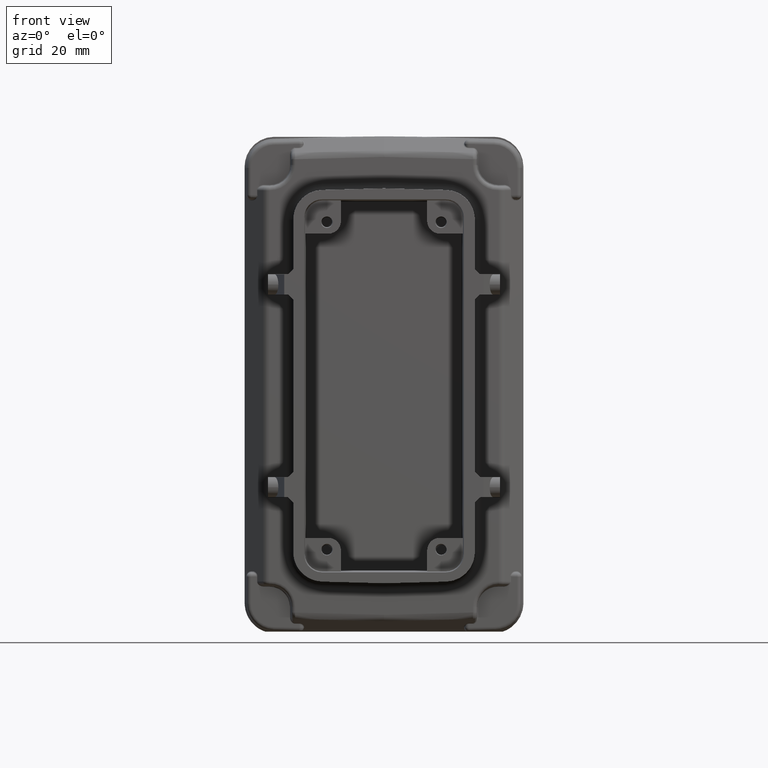
[diagram: clean part render]
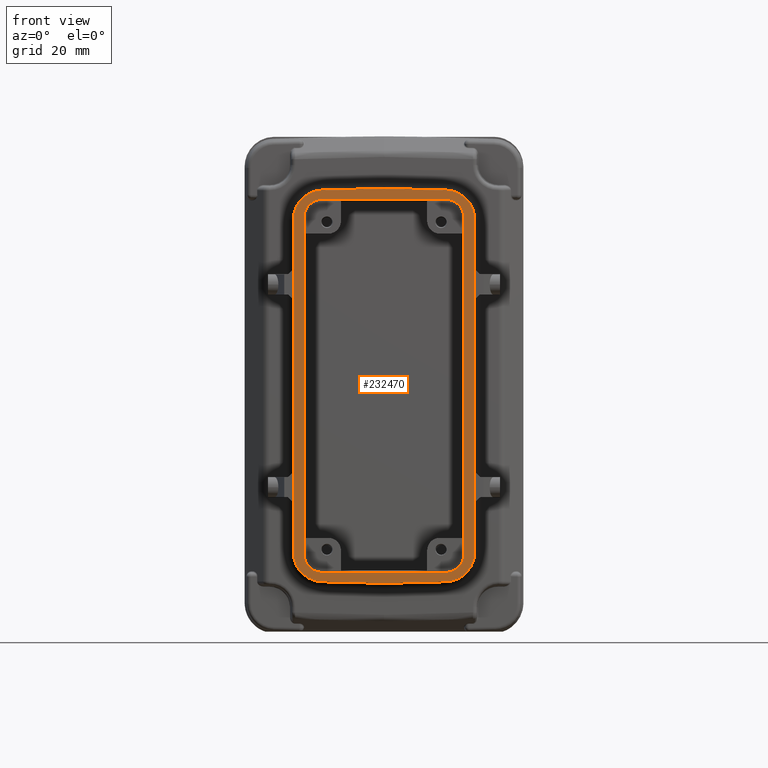
[diagram: same view with one face highlighted and labeled with its STEP entity id]
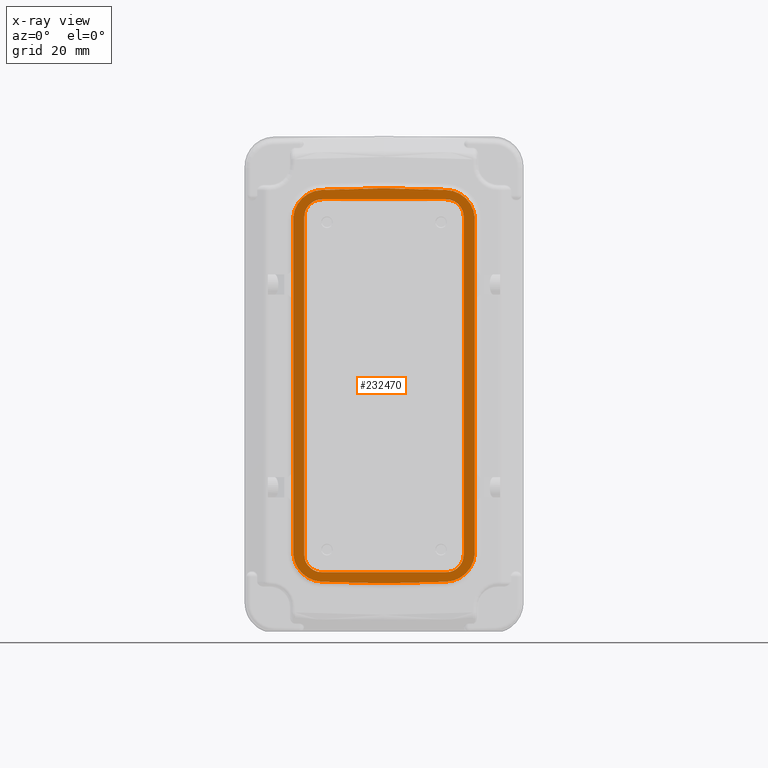
[diagram: x-ray of the same camera — body ghosted, the highlighted face saturated]
A machine part, front view. The second image highlights one B-rep face of the part: STEP entity #232470.
The next image is the same camera in x-ray: the body ghosted, the highlighted face saturated — about 0% of this face is hidden behind the body in this view.
In plain terms, the highlighted planar face has unit normal (0, -1, 0).
Its self-contained STEP definition (entity closure, byte-faithful):
#110250=CARTESIAN_POINT('',(61.3036735031013,19.780754524589,
-63.5682334685841));
#110260=VERTEX_POINT('',#110250);
#110310=CARTESIAN_POINT('',(61.1204348649462,19.780754524589,
-56.5706321937552));
#110320=DIRECTION('',(0.,1.,0.));
#110330=DIRECTION('',(1.,-0.,0.));
#110340=AXIS2_PLACEMENT_3D('',#110310,#110320,#110330);
#110350=CIRCLE('',#110340,6.99999999999996);
#110360=CARTESIAN_POINT('',(68.1097475108448,19.7807545245883,
-56.9572958031297));
#110370=VERTEX_POINT('',#110360);
#110380=EDGE_CURVE('',#110370,#110260,#110350,.T.);
#113020=CARTESIAN_POINT('',(0.,19.780754524589,-63.9419195492283));
#113030=DIRECTION('',(-1.,-0.,-0.));
#113040=VECTOR('',#113030,1.);
#113050=LINE('',#113020,#113040);
#113060=CARTESIAN_POINT('',(47.0331778225539,19.780754524589,
-63.9419195492284));
#113070=VERTEX_POINT('',#113060);
#113080=CARTESIAN_POINT('',(46.2122392391191,19.780754524589,
-63.9419195492284));
#113090=VERTEX_POINT('',#113080);
#113100=EDGE_CURVE('',#113070,#113090,#113050,.T.);
#116990=CARTESIAN_POINT('',(65.5085327492916,19.780754524589,
-57.1416259170758));
#117000=VERTEX_POINT('',#116990);
#117030=CARTESIAN_POINT('',(65.5085327492916,19.780754524589,
-57.1416259170758));
#117040=CARTESIAN_POINT('',(65.5085327492916,19.780754524589,
-57.2103441698574));
#117050=CARTESIAN_POINT('',(65.5068462848058,19.780754524589,
-57.2790615650155));
#117060=CARTESIAN_POINT('',(65.5001044758707,19.780754524589,
-57.4163296577894));
#117070=CARTESIAN_POINT('',(65.4950491429893,19.780754524589,
-57.4848801198147));
#117080=CARTESIAN_POINT('',(65.4815817576604,19.780754524589,
-57.6216492936064));
#117090=CARTESIAN_POINT('',(65.4731697283252,19.780754524589,
-57.6898677706208));
#117100=CARTESIAN_POINT('',(65.4530091926015,19.780754524589,
-57.8258087204412));
#117110=CARTESIAN_POINT('',(65.441260720816,19.780754524589,
-57.8935309599011));
#117120=CARTESIAN_POINT('',(65.4144555760805,19.780754524589,
-58.0283163749166));
#117130=CARTESIAN_POINT('',(65.3993989491429,19.780754524589,
-58.0953793190908));
#117140=CARTESIAN_POINT('',(65.366013735288,19.780754524589,
-58.2286846706942));
#117150=CARTESIAN_POINT('',(65.3476852056833,19.780754524589,
-58.2949268492652));
#117160=CARTESIAN_POINT('',(65.3078003057159,19.780754524589,
-58.4264311724594));
#117170=CARTESIAN_POINT('',(65.286244003829,19.780754524589,
-58.491693091302));
#117180=CARTESIAN_POINT('',(65.2399554503283,19.780754524589,
-58.6210797575036));
#117190=CARTESIAN_POINT('',(65.2152232781893,19.780754524589,
-58.6852042827061));
#117200=CARTESIAN_POINT('',(65.1626425220825,19.780754524589,
-58.8121617621115));
#117210=CARTESIAN_POINT('',(65.1347940283999,19.780754524589,
-58.8749944983133));
#117220=CARTESIAN_POINT('',(65.0760476706215,19.780754524589,
-58.9992171099699));
#117230=CARTESIAN_POINT('',(65.0451499074043,19.780754524589,
-59.0606067721063));
#117240=CARTESIAN_POINT('',(64.9803793940734,19.780754524589,
-59.1817954199162));
#117250=CARTESIAN_POINT('',(64.9465067551875,19.780754524589,
-59.2415941974734));
#117260=CARTESIAN_POINT('',(64.875868037038,19.780754524589,
-59.3594570903479));
#117270=CARTESIAN_POINT('',(64.8391020790842,19.780754524589,
-59.4175210032533));
#117280=CARTESIAN_POINT('',(64.7627652359758,19.780754524589,
-59.5317743576692));
#117290=CARTESIAN_POINT('',(64.7231944819229,19.780754524589,
-59.5879636029576));
#117300=CARTESIAN_POINT('',(64.6413433133391,19.780754524589,
-59.6983323262241));
#117310=CARTESIAN_POINT('',(64.5990630393834,19.780754524589,
-59.7525116146479));
#117320=CARTESIAN_POINT('',(64.5118946218817,19.780754524589,
-59.8587299672718));
#117330=CARTESIAN_POINT('',(64.4670066280463,19.780754524589,
-59.9107688490423));
#117340=CARTESIAN_POINT('',(64.3747308407528,19.780754524589,
-60.012581084554));
#117350=CARTESIAN_POINT('',(64.3273432057793,19.780754524589,
-60.0623542634312));
#117360=CARTESIAN_POINT('',(64.2301822250527,19.780754524589,
-60.1595152441578));
#117370=CARTESIAN_POINT('',(64.1804090461755,19.780754524589,
-60.2069028791313));
#117380=CARTESIAN_POINT('',(64.0785968106638,19.780754524589,
-60.2991786664248));
#117390=CARTESIAN_POINT('',(64.0265579288933,19.780754524589,
-60.3440666602602));
#117400=CARTESIAN_POINT('',(63.9203395762693,19.780754524589,
-60.431235077762));
#117410=CARTESIAN_POINT('',(63.8661602878456,19.780754524589,
-60.4735153517176));
#117420=CARTESIAN_POINT('',(63.7557915645791,19.780754524589,
-60.5553665203015));
#117430=CARTESIAN_POINT('',(63.6996023192907,19.780754524589,
-60.5949372743543));
#117440=CARTESIAN_POINT('',(63.5853489648748,19.780754524589,
-60.6712741174627));
#117450=CARTESIAN_POINT('',(63.5272850519694,19.780754524589,
-60.7080400754165));
#117460=CARTESIAN_POINT('',(63.4094221590949,19.780754524589,
-60.778678793566));
#117470=CARTESIAN_POINT('',(63.3496233815376,19.780754524589,
-60.8125514324519));
#117480=CARTESIAN_POINT('',(63.2284347337259,19.780754524589,
-60.8773219457838));
#117490=CARTESIAN_POINT('',(63.1670450715895,19.780754524589,
-60.9082197090009));
#117500=CARTESIAN_POINT('',(63.0428224599348,19.780754524589,
-60.9669660667784));
#117510=CARTESIAN_POINT('',(62.979989723733,19.780754524589,
-60.994814560461));
#117520=CARTESIAN_POINT('',(62.85303224433,19.780754524589,
-61.0473953165668));
#117530=CARTESIAN_POINT('',(62.7889077191276,19.780754524589,
-61.0721274887059));
#117540=CARTESIAN_POINT('',(62.6595210529208,19.780754524589,
-61.1184160422084));
#117550=CARTESIAN_POINT('',(62.5942591340782,19.780754524589,
-61.1399723440952));
#117560=CARTESIAN_POINT('',(62.4627548108857,19.780754524589,
-61.1798572440621));
#117570=CARTESIAN_POINT('',(62.3965126323147,19.780754524589,
-61.1981857736667));
#117580=CARTESIAN_POINT('',(62.2632072807103,19.780754524589,
-61.2315709875219));
#117590=CARTESIAN_POINT('',(62.196144336536,19.780754524589,
-61.2466276144594));
#117600=CARTESIAN_POINT('',(62.0613589215238,19.780754524589,
-61.2734327591942));
#117610=CARTESIAN_POINT('',(61.9936366820639,19.780754524589,
-61.2851812309798));
#117620=CARTESIAN_POINT('',(61.8576957322423,19.780754524589,
-61.3053417667037));
#117630=CARTESIAN_POINT('',(61.7894772552278,19.780754524589,
-61.3137537960388));
#117640=CARTESIAN_POINT('',(61.6527080814374,19.780754524589,
-61.3272211813677));
#117650=CARTESIAN_POINT('',(61.5841576194122,19.780754524589,
-61.3322765142491));
#117660=CARTESIAN_POINT('',(61.446889526637,19.780754524589,
-61.3390183231842));
#117670=CARTESIAN_POINT('',(61.378172131479,19.780754524589,
-61.3407047876701));
#117680=CARTESIAN_POINT('',(61.3094538786973,19.780754524589,
-61.3407047876701));
#117690=B_SPLINE_CURVE_WITH_KNOTS('',3,(#117030,#117040,#117050,#117060,
#117070,#117080,#117090,#117100,#117110,#117120,#117130,#117140,#117150,
#117160,#117170,#117180,#117190,#117200,#117210,#117220,#117230,#117240,
#117250,#117260,#117270,#117280,#117290,#117300,#117310,#117320,#117330,
#117340,#117350,#117360,#117370,#117380,#117390,#117400,#117410,#117420,
#117430,#117440,#117450,#117460,#117470,#117480,#117490,#117500,#117510,
#117520,#117530,#117540,#117550,#117560,#117570,#117580,#117590,#117600,
#117610,#117620,#117630,#117640,#117650,#117660,#117670,#117680),
.UNSPECIFIED.,.F.,.F.,(4,2,2,2,2,2,2,2,2,2,2,2,2,2,2,2,2,2,2,2,2,2,2,2,2
,2,2,2,2,2,2,2,4),(0.,0.206173115542941,0.412341820345254,
0.618506178290055,0.824666295105034,1.03082231734725,1.2369744309946,
1.44312285965746,1.64926786242773,1.85540973138577,2.06154878878939,
2.26768538397176,2.47381988997822,2.67995269997444,2.88608422346027,
3.09221488232627,3.29834510679037,3.50447533125448,3.71060599012046,
3.9167375136063,4.12287032360251,4.32900482960898,4.53514142479134,
4.74128048219496,4.94742235115299,5.15356735392326,5.35971578258612,
5.56586789623347,5.77202391847568,5.97818403529066,6.18434839323545,
6.39051709803777,6.59669021358072),.UNSPECIFIED.);
#117700=CARTESIAN_POINT('',(61.3094538786973,19.780754524589,
-61.3407047876701));
#117710=VERTEX_POINT('',#117700);
#117720=EDGE_CURVE('',#117000,#117710,#117690,.T.);
#133710=CARTESIAN_POINT('',(31.9417440336335,19.780754524589,
-63.568233481024));
#133720=VERTEX_POINT('',#133710);
#133770=CARTESIAN_POINT('',(0.,19.780754524589,-62.7318094769762));
#133780=DIRECTION('',(0.999657324975557,0.,-0.0261769483078761));
#133790=VECTOR('',#133780,1.);
#133800=LINE('',#133770,#133790);
#133810=EDGE_CURVE('',#133720,#113090,#133800,.T.);
#142160=CARTESIAN_POINT('',(31.9359631829766,19.780754524589,
-61.3407047876701));
#142170=CARTESIAN_POINT('',(31.8672449301926,19.780754524589,
-61.3407047876701));
#142180=CARTESIAN_POINT('',(31.7985275350346,19.780754524589,
-61.3390183231841));
#142190=CARTESIAN_POINT('',(31.6612594422652,19.780754524589,
-61.3322765142493));
#142200=CARTESIAN_POINT('',(31.5927089802399,19.780754524589,
-61.327221181368));
#142210=CARTESIAN_POINT('',(31.455939806446,19.780754524589,
-61.3137537960388));
#142220=CARTESIAN_POINT('',(31.3877213294316,19.780754524589,
-61.3053417667037));
#142230=CARTESIAN_POINT('',(31.2517803796133,19.780754524589,
-61.2851812309803));
#142240=CARTESIAN_POINT('',(31.1840581401534,19.780754524589,
-61.2734327591949));
#142250=CARTESIAN_POINT('',(31.0492727251379,19.780754524589,
-61.2466276144594));
#142260=CARTESIAN_POINT('',(30.9822097809635,19.780754524589,
-61.2315709875219));
#142270=CARTESIAN_POINT('',(30.8489044293582,19.780754524589,
-61.1981857736665));
#142280=CARTESIAN_POINT('',(30.7826622507871,19.780754524589,
-61.1798572440618));
#142290=CARTESIAN_POINT('',(30.651157927593,19.780754524589,
-61.1399723440944));
#142300=CARTESIAN_POINT('',(30.5858960087504,19.780754524589,
-61.1184160422075));
#142310=CARTESIAN_POINT('',(30.4565093425463,19.780754524589,
-61.0721274887059));
#142320=CARTESIAN_POINT('',(30.3923848173439,19.780754524589,
-61.0473953165668));
#142330=CARTESIAN_POINT('',(30.2654273379409,19.780754524589,
-60.994814560461));
#142340=CARTESIAN_POINT('',(30.202594601739,19.780754524589,
-60.9669660667784));
#142350=CARTESIAN_POINT('',(30.0783719900824,19.780754524589,
-60.908219709));
#142360=CARTESIAN_POINT('',(30.0169823279461,19.780754524589,
-60.8773219457829));
#142370=CARTESIAN_POINT('',(29.8957936801378,19.780754524589,
-60.8125514324528));
#142380=CARTESIAN_POINT('',(29.8359949025805,19.780754524589,
-60.7786787935669));
#142390=CARTESIAN_POINT('',(29.7181320097044,19.780754524589,
-60.7080400754165));
#142400=CARTESIAN_POINT('',(29.6600680967991,19.780754524589,
-60.6712741174628));
#142410=CARTESIAN_POINT('',(29.5458147423842,19.780754524589,
-60.594937274355));
#142420=CARTESIAN_POINT('',(29.4896254970957,19.780754524589,
-60.5553665203022));
#142430=CARTESIAN_POINT('',(29.3792567738282,19.780754524589,
-60.4735153517176));
#142440=CARTESIAN_POINT('',(29.3250774854045,19.780754524589,
-60.431235077762));
#142450=CARTESIAN_POINT('',(29.2188591327806,19.780754524589,
-60.3440666602603));
#142460=CARTESIAN_POINT('',(29.1668202510101,19.780754524589,
-60.2991786664249));
#142470=CARTESIAN_POINT('',(29.0650080154983,19.780754524589,
-60.2069028791313));
#142480=CARTESIAN_POINT('',(29.0152348366211,19.780754524589,
-60.1595152441579));
#142490=CARTESIAN_POINT('',(28.9180738558945,19.780754524589,
-60.0623542634313));
#142500=CARTESIAN_POINT('',(28.8706862209211,19.780754524589,
-60.0125810845541));
#142510=CARTESIAN_POINT('',(28.7784104336275,19.780754524589,
-59.9107688490423));
#142520=CARTESIAN_POINT('',(28.7335224397922,19.780754524589,
-59.8587299672718));
#142530=CARTESIAN_POINT('',(28.6463540222904,19.780754524589,
-59.7525116146479));
#142540=CARTESIAN_POINT('',(28.6040737483347,19.780754524589,
-59.6983323262241));
#142550=CARTESIAN_POINT('',(28.5222225797502,19.7807545245889,
-59.5879636029566));
#142560=CARTESIAN_POINT('',(28.4826518256974,19.7807545245889,
-59.5317743576683));
#142570=CARTESIAN_POINT('',(28.4063149825904,19.7807545245889,
-59.4175210032545));
#142580=CARTESIAN_POINT('',(28.3695490246366,19.7807545245889,
-59.3594570903493));
#142590=CARTESIAN_POINT('',(28.2989103064864,19.7807545245889,
-59.2415941974734));
#142600=CARTESIAN_POINT('',(28.2650376676004,19.7807545245889,
-59.1817954199162));
#142610=CARTESIAN_POINT('',(28.2002671542695,19.7807545245889,
-59.0606067721063));
#142620=CARTESIAN_POINT('',(28.1693693910524,19.7807545245889,
-58.99921710997));
#142630=CARTESIAN_POINT('',(28.1106230332746,19.7807545245889,
-58.8749944983147));
#142640=CARTESIAN_POINT('',(28.082774539592,19.7807545245889,
-58.812161762113));
#142650=CARTESIAN_POINT('',(28.0301937834853,19.7807545245889,
-58.6852042827077));
#142660=CARTESIAN_POINT('',(28.0054616113462,19.7807545245889,
-58.6210797575052));
#142670=CARTESIAN_POINT('',(27.9591730578449,19.7807545245889,
-58.491693091302));
#142680=CARTESIAN_POINT('',(27.937616755958,19.7807545245889,
-58.4264311724594));
#142690=CARTESIAN_POINT('',(27.8977318559897,19.7807545245888,
-58.2949268492623));
#142700=CARTESIAN_POINT('',(27.8794033263852,19.7807545245888,
-58.2286846706913));
#142710=CARTESIAN_POINT('',(27.8460181125305,19.7807545245888,
-58.0953793190888));
#142720=CARTESIAN_POINT('',(27.830961485593,19.7807545245888,
-58.0283163749146));
#142730=CARTESIAN_POINT('',(27.8041563408575,19.7807545245888,
-57.8935309598991));
#142740=CARTESIAN_POINT('',(27.7924078690721,19.7807545245888,
-57.825808720439));
#142750=CARTESIAN_POINT('',(27.7722473333482,19.7807545245888,
-57.6898677706173));
#142760=CARTESIAN_POINT('',(27.7638353040132,19.7807545245888,
-57.621649293603));
#142770=CARTESIAN_POINT('',(27.7503679186846,19.7807545245888,
-57.4848801198147));
#142780=CARTESIAN_POINT('',(27.7453125858032,19.7807545245888,
-57.4163296577894));
#142790=CARTESIAN_POINT('',(27.7385707768683,19.7807545245888,
-57.2790615650179));
#142800=CARTESIAN_POINT('',(27.7368843123823,19.7807545245888,
-57.2103441698598));
#142810=CARTESIAN_POINT('',(27.7368843123823,19.7807545245888,
-57.1416259170758));
#142820=B_SPLINE_CURVE_WITH_KNOTS('',3,(#142160,#142170,#142180,#142190,
#142200,#142210,#142220,#142230,#142240,#142250,#142260,#142270,#142280,
#142290,#142300,#142310,#142320,#142330,#142340,#142350,#142360,#142370,
#142380,#142390,#142400,#142410,#142420,#142430,#142440,#142450,#142460,
#142470,#142480,#142490,#142500,#142510,#142520,#142530,#142540,#142550,
#142560,#142570,#142580,#142590,#142600,#142610,#142620,#142630,#142640,
#142650,#142660,#142670,#142680,#142690,#142700,#142710,#142720,#142730,
#142740,#142750,#142760,#142770,#142780,#142790,#142800,#142810),
.UNSPECIFIED.,.F.,.F.,(4,2,2,2,2,2,2,2,2,2,2,2,2,2,2,2,2,2,2,2,2,2,2,2,2
,2,2,2,2,2,2,2,4),(0.,0.206173115542941,0.412341820345264,
0.618506178290068,0.824666295105047,1.03082231734727,1.23697443099461,
1.44312285965748,1.64926786242775,1.85540973138579,2.06154878878941,
2.26768538397177,2.47381988997824,2.67995269997445,2.8860842234603,
3.09221488232628,3.29834510679039,3.50447533125449,3.71060599012048,
3.91673751360631,4.12287032360253,4.329004829609,4.53514142479136,
4.74128048219498,4.94742235115302,5.15356735392329,5.35971578258615,
5.5658678962335,5.77202391847572,5.9781840352907,6.18434839323551,
6.39051709803782,6.59669021358077),.UNSPECIFIED.);
#142830=CARTESIAN_POINT('',(31.9359631829766,19.780754524589,
-61.3407047876702));
#142840=VERTEX_POINT('',#142830);
#142850=CARTESIAN_POINT('',(27.7368843123823,19.7807545245888,
-57.1416259170758));
#142860=VERTEX_POINT('',#142850);
#142870=EDGE_CURVE('',#142840,#142860,#142820,.T.);
#151680=CARTESIAN_POINT('',(0.,19.780754524589,-65.1735266548395));
#151690=DIRECTION('',(0.999657324975557,0.,0.0261769483078757));
#151700=VECTOR('',#151690,1.);
#151710=LINE('',#151680,#151700);
#151720=EDGE_CURVE('',#113070,#110260,#151710,.T.);
#168620=CARTESIAN_POINT('',(0.,19.780754524589,-61.3407047876703));
#168630=DIRECTION('',(1.,-0.,-0.));
#168640=VECTOR('',#168630,1.);
#168650=LINE('',#168620,#168640);
#168660=EDGE_CURVE('',#142840,#117710,#168650,.T.);
#208170=CARTESIAN_POINT('',(25.1356695508344,19.780754524589,
-56.9572872168403));
#208180=VERTEX_POINT('',#208170);
#208210=CARTESIAN_POINT('',(32.1249826717887,19.780754524589,
-56.5706322061951));
#208220=DIRECTION('',(0.,1.,0.));
#208230=DIRECTION('',(1.,-0.,0.));
#208240=AXIS2_PLACEMENT_3D('',#208210,#208220,#208230);
#208250=CIRCLE('',#208240,7.00000000000001);
#208260=EDGE_CURVE('',#133720,#208180,#208250,.T.);
#215000=CARTESIAN_POINT('',(65.5085327490753,19.7807545345238,
22.7354494636046));
#215010=VERTEX_POINT('',#215000);
#215040=CARTESIAN_POINT('',(65.5085327492857,19.780754524589,0.));
#215050=DIRECTION('',(-0.,0.,-1.));
#215060=VECTOR('',#215050,1.);
#215070=LINE('',#215040,#215060);
#215080=EDGE_CURVE('',#215010,#117000,#215070,.T.);
#217550=CARTESIAN_POINT('',(68.1097470357802,19.7807545245814,
22.551119350681));
#217560=VERTEX_POINT('',#217550);
#217890=CARTESIAN_POINT('',(68.1097475108297,19.780754524589,0.));
#217900=DIRECTION('',(-0.,0.,1.));
#217910=VECTOR('',#217900,1.);
#217920=LINE('',#217890,#217910);
#217930=EDGE_CURVE('',#110370,#217560,#217920,.T.);
#230240=CARTESIAN_POINT('',(24.0613144518342,19.780754524589,
-66.9411142653572));
#230250=DIRECTION('',(0.,-1.,0.));
#230260=DIRECTION('',(-1.,-0.,0.));
#230270=AXIS2_PLACEMENT_3D('',#230240,#230250,#230260);
#230280=PLANE('',#230270);
#230290=ORIENTED_EDGE('',*,*,#110380,.F.);
#230300=ORIENTED_EDGE('',*,*,#151720,.T.);
#230310=ORIENTED_EDGE('',*,*,#113100,.F.);
#230320=ORIENTED_EDGE('',*,*,#133810,.T.);
#230330=ORIENTED_EDGE('',*,*,#208260,.F.);
#230340=CARTESIAN_POINT('',(25.1356695508804,19.780754524589,0.));
#230350=DIRECTION('',(0.,-0.,1.));
#230360=VECTOR('',#230350,1.);
#230370=LINE('',#230340,#230360);
#230380=CARTESIAN_POINT('',(25.1356690758033,19.7807545245814,
22.5511107642502));
#230390=VERTEX_POINT('',#230380);
#230400=EDGE_CURVE('',#208180,#230390,#230370,.T.);
#230410=ORIENTED_EDGE('',*,*,#230400,.F.);
#230420=CARTESIAN_POINT('',(32.1249821967203,19.7807545245814,
22.1644557529319));
#230430=DIRECTION('',(0.,-1.,0.));
#230440=DIRECTION('',(-1.,0.,0.));
#230450=AXIS2_PLACEMENT_3D('',#230420,#230430,#230440);
#230460=CIRCLE('',#230450,7.00000000000002);
#230470=CARTESIAN_POINT('',(31.9417435585652,19.7807545245814,
29.1620570277608));
#230480=VERTEX_POINT('',#230470);
#230490=EDGE_CURVE('',#230480,#230390,#230460,.T.);
#230500=ORIENTED_EDGE('',*,*,#230490,.T.);
#230510=CARTESIAN_POINT('',(-4.75063188787317E-7,19.7807545245814,
28.3256330237131));
#230520=DIRECTION('',(-0.999657324975557,0.,-0.0261769483078759));
#230530=VECTOR('',#230520,1.);
#230540=LINE('',#230510,#230530);
#230550=CARTESIAN_POINT('',(46.2122387624066,19.7807545245814,
29.5357430959221));
#230560=VERTEX_POINT('',#230550);
#230570=EDGE_CURVE('',#230560,#230480,#230540,.T.);
#230580=ORIENTED_EDGE('',*,*,#230570,.T.);
#230590=CARTESIAN_POINT('',(-4.75063188787317E-7,19.7807545245814,
29.5357430959219));
#230600=DIRECTION('',(-1.,0.,0.));
#230610=VECTOR('',#230600,1.);
#230620=LINE('',#230590,#230610);
#230630=CARTESIAN_POINT('',(47.0331778241865,19.7807545245814,
29.5357430959221));
#230640=VERTEX_POINT('',#230630);
#230650=EDGE_CURVE('',#230640,#230560,#230620,.T.);
#230660=ORIENTED_EDGE('',*,*,#230650,.T.);
#230670=CARTESIAN_POINT('',(-4.75063188787317E-7,19.7807545245814,
30.7673502140156));
#230680=DIRECTION('',(-0.999657324975557,0.,0.0261769483078683));
#230690=VECTOR('',#230680,1.);
#230700=LINE('',#230670,#230690);
#230710=CARTESIAN_POINT('',(61.3036730280326,19.7807545245814,
29.1620570277608));
#230720=VERTEX_POINT('',#230710);
#230730=EDGE_CURVE('',#230720,#230640,#230700,.T.);
#230740=ORIENTED_EDGE('',*,*,#230730,.T.);
#230750=CARTESIAN_POINT('',(61.1204343898775,19.7807545245814,
22.1644557529319));
#230760=DIRECTION('',(0.,1.,0.));
#230770=DIRECTION('',(1.,-0.,0.));
#230780=AXIS2_PLACEMENT_3D('',#230750,#230760,#230770);
#230790=CIRCLE('',#230780,6.99999999999993);
#230800=EDGE_CURVE('',#230720,#217560,#230790,.T.);
#230810=ORIENTED_EDGE('',*,*,#230800,.F.);
#230820=ORIENTED_EDGE('',*,*,#217930,.T.);
#230830=EDGE_LOOP('',(#230820,#230810,#230740,#230660,#230580,#230500,
#230410,#230330,#230320,#230310,#230300,#230290));
#230840=FACE_OUTER_BOUND('',#230830,.T.);
#230850=CARTESIAN_POINT('',(61.3094538786892,19.7807545245814,
26.9345283344072));
#230860=CARTESIAN_POINT('',(61.378172131473,19.7807545245814,
26.9345283344072));
#230870=CARTESIAN_POINT('',(61.4468895266333,19.7807545245814,
26.9328418699212));
#230880=CARTESIAN_POINT('',(61.5841576194115,19.7807545245814,
26.9261000609857));
#230890=CARTESIAN_POINT('',(61.652708081439,19.7807545245814,
26.921044728104));
#230900=CARTESIAN_POINT('',(61.7894772552336,19.7807545245814,
26.9075773427743));
#230910=CARTESIAN_POINT('',(61.8576957322503,19.7807545245815,
26.8991653134387));
#230920=CARTESIAN_POINT('',(61.9936366820771,19.7807545245817,
26.8790047777134));
#230930=CARTESIAN_POINT('',(62.0613589215392,19.7807545245819,
26.8672563059271));
#230940=CARTESIAN_POINT('',(62.1961443365555,19.7807545245826,
26.8404511611905));
#230950=CARTESIAN_POINT('',(62.2632072807318,19.7807545245833,
26.8253945342521));
#230960=CARTESIAN_POINT('',(62.3965126323381,19.7807545245854,
26.7920093203954));
#230970=CARTESIAN_POINT('',(62.4627548109111,19.7807545245871,
26.7736807907897));
#230980=CARTESIAN_POINT('',(62.5942591341092,19.7807545245919,
26.7337958908197));
#230990=CARTESIAN_POINT('',(62.6595210529535,19.7807545245954,
26.7122395889316));
#231000=CARTESIAN_POINT('',(62.7889077191612,19.780754524605,
26.6659510354271));
#231010=CARTESIAN_POINT('',(62.8530322443653,19.7807545246114,
26.6412188632865));
#231020=CARTESIAN_POINT('',(62.9799897237737,19.7807545246285,
26.5886381071765));
#231030=CARTESIAN_POINT('',(63.0428224599769,19.7807545246396,
26.5607896134922));
#231040=CARTESIAN_POINT('',(63.1670450716341,19.7807545246677,
26.5020432557111));
#231050=CARTESIAN_POINT('',(63.2284347337717,19.7807545246852,
26.4711454924922));
#231060=CARTESIAN_POINT('',(63.3496233815847,19.7807545247283,
26.4063749791567));
#231070=CARTESIAN_POINT('',(63.4094221591428,19.7807545247545,
26.3725023402687));
#231080=CARTESIAN_POINT('',(63.527285052019,19.7807545248174,
26.3018636221147));
#231090=CARTESIAN_POINT('',(63.5853489649248,19.7807545248546,
26.2650976641587));
#231100=CARTESIAN_POINT('',(63.6996023193401,19.7807545249422,
26.1887608210464));
#231110=CARTESIAN_POINT('',(63.7557915646285,19.7807545249931,
26.1491900669912));
#231120=CARTESIAN_POINT('',(63.8661602878953,19.7807545251104,
26.0673388984019));
#231130=CARTESIAN_POINT('',(63.9203395763185,19.7807545251774,
26.0250586244437));
#231140=CARTESIAN_POINT('',(64.0265579289407,19.7807545253293,
25.937890206937));
#231150=CARTESIAN_POINT('',(64.0785968107101,19.7807545254147,
25.893002213099));
#231160=CARTESIAN_POINT('',(64.1804090462189,19.7807545256055,
25.8007264258001));
#231170=CARTESIAN_POINT('',(64.2301822250943,19.7807545257113,
25.753338790824));
#231180=CARTESIAN_POINT('',(64.3273432058166,19.7807545259444,
25.6561778100919));
#231190=CARTESIAN_POINT('',(64.3747308407877,19.7807545260721,
25.6064046312119));
#231200=CARTESIAN_POINT('',(64.4670066280756,19.7807545263498,
25.5045923956946));
#231210=CARTESIAN_POINT('',(64.5118946219079,19.7807545265001,
25.4525535139212));
#231220=CARTESIAN_POINT('',(64.5990630394026,19.780754526823,
25.3463351612915));
#231230=CARTESIAN_POINT('',(64.6413433133545,19.7807545269959,
25.2921558728648));
#231240=CARTESIAN_POINT('',(64.7231944819299,19.7807545273631,
25.1817871495924));
#231250=CARTESIAN_POINT('',(64.7627652359783,19.7807545275575,
25.125597904301));
#231260=CARTESIAN_POINT('',(64.8391020790771,19.7807545279658,
25.0113445498791));
#231270=CARTESIAN_POINT('',(64.8758680370257,19.7807545281796,
24.9532806369707));
#231280=CARTESIAN_POINT('',(64.9465067551651,19.7807545286239,
24.8354177440886));
#231290=CARTESIAN_POINT('',(64.9803793940453,19.7807545288539,
24.7756189665284));
#231300=CARTESIAN_POINT('',(65.0451499073643,19.7807545293265,
24.6544303187122));
#231310=CARTESIAN_POINT('',(65.0760476705752,19.7807545295684,
24.5930406565728));
#231320=CARTESIAN_POINT('',(65.1347940283398,19.7807545300595,
24.4688180449121));
#231330=CARTESIAN_POINT('',(65.1626425220158,19.7807545303078,
24.4059853087073));
#231340=CARTESIAN_POINT('',(65.2152232781091,19.7807545308056,
24.2790278292958));
#231350=CARTESIAN_POINT('',(65.2399554502413,19.7807545310539,
24.2149033040904));
#231360=CARTESIAN_POINT('',(65.2862440037281,19.7807545315445,
24.0855166378829));
#231370=CARTESIAN_POINT('',(65.3078003056081,19.7807545317855,
24.0202547190374));
#231380=CARTESIAN_POINT('',(65.3476852055625,19.7807545322536,
23.8887503958346));
#231390=CARTESIAN_POINT('',(65.3660137351602,19.7807545324794,
23.8225082172607));
#231400=CARTESIAN_POINT('',(65.3993989490006,19.7807545329086,
23.6892028656557));
#231410=CARTESIAN_POINT('',(65.4144555759316,19.7807545331108,
23.6221399214787));
#231420=CARTESIAN_POINT('',(65.4412607206545,19.7807545334844,
23.4873545064568));
#231430=CARTESIAN_POINT('',(65.4530091924339,19.7807545336546,
23.4196322669941));
#231440=CARTESIAN_POINT('',(65.4731697281459,19.7807545339559,
23.2836913171674));
#231450=CARTESIAN_POINT('',(65.4815817574754,19.7807545340861,
23.2154728401503));
#231460=CARTESIAN_POINT('',(65.4950491427941,19.7807545342997,
23.0787036663527));
#231470=CARTESIAN_POINT('',(65.5001044756706,19.7807545343825,
23.010153204325));
#231480=CARTESIAN_POINT('',(65.5068462845968,19.7807545344947,
22.8728851115488));
#231490=CARTESIAN_POINT('',(65.5085327490787,19.7807545345238,
22.8041677163883));
#231500=CARTESIAN_POINT('',(65.5085327490753,19.7807545345238,
22.7354494636046));
#231510=B_SPLINE_CURVE_WITH_KNOTS('',3,(#230850,#230860,#230870,#230880,
#230890,#230900,#230910,#230920,#230930,#230940,#230950,#230960,#230970,
#230980,#230990,#231000,#231010,#231020,#231030,#231040,#231050,#231060,
#231070,#231080,#231090,#231100,#231110,#231120,#231130,#231140,#231150,
#231160,#231170,#231180,#231190,#231200,#231210,#231220,#231230,#231240,
#231250,#231260,#231270,#231280,#231290,#231300,#231310,#231320,#231330,
#231340,#231350,#231360,#231370,#231380,#231390,#231400,#231410,#231420,
#231430,#231440,#231450,#231460,#231470,#231480,#231490,#231500),
.UNSPECIFIED.,.F.,.F.,(4,2,2,2,2,2,2,2,2,2,2,2,2,2,2,2,2,2,2,2,2,2,2,2,2
,2,2,2,2,2,2,2,4),(0.,0.206173115549446,0.412341820358281,
0.618506178309585,0.824666295131065,1.03082231737975,1.2369744310335,
1.44312285970266,1.64926786247906,1.85540973144298,2.06154878885211,
2.26768538403955,2.47381989005056,2.67995270005066,2.8860842235397,
3.09221488240814,3.29834510687394,3.50447533133903,3.71060599020538,
3.91673751369107,4.12287032368677,4.32900482969259,4.53514142487435,
4.74128048227767,4.94742235123592,5.15356735400709,5.35971578267173,
5.5658678963218,5.77202391856775,5.9781840353874,6.1843483933377,
6.39051709814613,6.59669021369551),.UNSPECIFIED.);
#231520=CARTESIAN_POINT('',(61.3094538786892,19.7807545245814,
26.9345283344072));
#231530=VERTEX_POINT('',#231520);
#231540=EDGE_CURVE('',#231530,#215010,#231510,.T.);
#231550=ORIENTED_EDGE('',*,*,#231540,.T.);
#231560=CARTESIAN_POINT('',(-4.75063188787317E-7,19.7807545245814,
26.9345283344071));
#231570=DIRECTION('',(1.,0.,0.));
#231580=VECTOR('',#231570,1.);
#231590=LINE('',#231560,#231580);
#231600=CARTESIAN_POINT('',(31.9359627079081,19.7807545245814,
26.934528334407));
#231610=VERTEX_POINT('',#231600);
#231620=EDGE_CURVE('',#231610,#231530,#231590,.T.);
#231630=ORIENTED_EDGE('',*,*,#231620,.T.);
#231640=CARTESIAN_POINT('',(27.7368838373138,19.7807545245813,
22.7354494638126));
#231650=CARTESIAN_POINT('',(27.7368838373138,19.7807545245813,
22.8041677165943));
#231660=CARTESIAN_POINT('',(27.7385703017997,19.7807545245813,
22.8728851117523));
#231670=CARTESIAN_POINT('',(27.7453121107346,19.7807545245813,
23.0101532045239));
#231680=CARTESIAN_POINT('',(27.7503674436159,19.7807545245813,
23.0787036665492));
#231690=CARTESIAN_POINT('',(27.7638348289451,19.7807545245813,
23.2154728403431));
#231700=CARTESIAN_POINT('',(27.7722468582803,19.7807545245813,
23.2836913173576));
#231710=CARTESIAN_POINT('',(27.7924073940041,19.7807545245813,
23.4196322671791));
#231720=CARTESIAN_POINT('',(27.8041558657897,19.7807545245813,
23.4873545066391));
#231730=CARTESIAN_POINT('',(27.8309610105245,19.7807545245813,
23.6221399216514));
#231740=CARTESIAN_POINT('',(27.846017637462,19.7807545245813,
23.6892028658256));
#231750=CARTESIAN_POINT('',(27.8794028513167,19.7807545245813,
23.8225082174281));
#231760=CARTESIAN_POINT('',(27.8977313809212,19.7807545245813,
23.8887503959991));
#231770=CARTESIAN_POINT('',(27.9376162808892,19.7807545245813,
24.0202547191952));
#231780=CARTESIAN_POINT('',(27.9591725827761,19.7807545245813,
24.0855166380379));
#231790=CARTESIAN_POINT('',(28.0054611362771,19.7807545245814,
24.2149033042404));
#231800=CARTESIAN_POINT('',(28.0301933084161,19.7807545245814,
24.2790278294429));
#231810=CARTESIAN_POINT('',(28.0827740645229,19.7807545245814,
24.4059853088483));
#231820=CARTESIAN_POINT('',(28.1106225582055,19.7807545245814,
24.4688180450501));
#231830=CARTESIAN_POINT('',(28.169368915983,19.7807545245814,
24.5930406567049));
#231840=CARTESIAN_POINT('',(28.2002666792,19.7807545245814,
24.6544303188412));
#231850=CARTESIAN_POINT('',(28.2650371925317,19.7807545245814,
24.7756189666524));
#231860=CARTESIAN_POINT('',(28.2989098314176,19.7807545245814,
24.8354177442097));
#231870=CARTESIAN_POINT('',(28.3695485495673,19.7807545245814,
24.9532806370847));
#231880=CARTESIAN_POINT('',(28.4063145075211,19.7807545245814,
25.0113445499901));
#231890=CARTESIAN_POINT('',(28.4826513506289,19.7807545245814,
25.125597904405));
#231900=CARTESIAN_POINT('',(28.5222221046817,19.7807545245814,
25.1817871496934));
#231910=CARTESIAN_POINT('',(28.6040732732663,19.7807545245814,
25.2921558729609));
#231920=CARTESIAN_POINT('',(28.6463535472219,19.7807545245814,
25.3463351613847));
#231930=CARTESIAN_POINT('',(28.7335219647237,19.7807545245814,
25.4525535140086));
#231940=CARTESIAN_POINT('',(28.778409958559,19.7807545245814,
25.5045923957791));
#231950=CARTESIAN_POINT('',(28.8706857458525,19.7807545245814,
25.6064046312908));
#231960=CARTESIAN_POINT('',(28.9180733808261,19.7807545245814,
25.6561778101681));
#231970=CARTESIAN_POINT('',(29.0152343615526,19.7807545245814,
25.7533387908947));
#231980=CARTESIAN_POINT('',(29.0650075404298,19.7807545245814,
25.8007264258682));
#231990=CARTESIAN_POINT('',(29.1668197759416,19.7807545245814,
25.8930022131617));
#232000=CARTESIAN_POINT('',(29.2188586577121,19.7807545245814,
25.9378902069971));
#232010=CARTESIAN_POINT('',(29.325077010336,19.7807545245814,
26.0250586244988));
#232020=CARTESIAN_POINT('',(29.3792562987598,19.7807545245814,
26.0673388984545));
#232030=CARTESIAN_POINT('',(29.4896250220263,19.7807545245814,
26.1491900670383));
#232040=CARTESIAN_POINT('',(29.5458142673147,19.7807545245814,
26.1887608210912));
#232050=CARTESIAN_POINT('',(29.6600676217293,19.7807545245814,
26.2650976641988));
#232060=CARTESIAN_POINT('',(29.7181315346347,19.7807545245814,
26.3018636221526));
#232070=CARTESIAN_POINT('',(29.8359944275105,19.7807545245814,
26.3725023403029));
#232080=CARTESIAN_POINT('',(29.8957932050677,19.7807545245814,
26.4063749791888));
#232090=CARTESIAN_POINT('',(30.0169818528795,19.7807545245814,
26.4711454925207));
#232100=CARTESIAN_POINT('',(30.0783715150158,19.7807545245814,
26.5020432557378));
#232110=CARTESIAN_POINT('',(30.2025941266706,19.7807545245814,
26.5607896135153));
#232120=CARTESIAN_POINT('',(30.2654268628724,19.7807545245814,
26.5886381071979));
#232130=CARTESIAN_POINT('',(30.3923843422778,19.7807545245814,
26.6412188633047));
#232140=CARTESIAN_POINT('',(30.4565088674803,19.7807545245814,
26.6659510354437));
#232150=CARTESIAN_POINT('',(30.5858955336846,19.7807545245814,
26.7122395889454));
#232160=CARTESIAN_POINT('',(30.6511574525272,19.7807545245814,
26.7337958908322));
#232170=CARTESIAN_POINT('',(30.7826617757216,19.7807545245814,
26.7736807907996));
#232180=CARTESIAN_POINT('',(30.8489039542926,19.7807545245814,
26.7920093204042));
#232190=CARTESIAN_POINT('',(30.982209305895,19.7807545245814,
26.8253945342589));
#232200=CARTESIAN_POINT('',(31.0492722500694,19.7807545245814,
26.8404511611963));
#232210=CARTESIAN_POINT('',(31.1840576650849,19.7807545245814,
26.8672563059319));
#232220=CARTESIAN_POINT('',(31.2517799045449,19.7807545245814,
26.8790047777173));
#232230=CARTESIAN_POINT('',(31.3877208543665,19.7807545245814,
26.8991653134411));
#232240=CARTESIAN_POINT('',(31.455939331381,19.7807545245814,
26.9075773427762));
#232250=CARTESIAN_POINT('',(31.5927085051714,19.7807545245814,
26.921044728105));
#232260=CARTESIAN_POINT('',(31.6612589671968,19.7807545245814,
26.9261000609863));
#232270=CARTESIAN_POINT('',(31.7985270599684,19.7807545245814,
26.9328418699212));
#232280=CARTESIAN_POINT('',(31.8672444551264,19.7807545245814,
26.9345283344071));
#232290=CARTESIAN_POINT('',(31.9359627079081,19.7807545245814,
26.9345283344071));
#232300=B_SPLINE_CURVE_WITH_KNOTS('',3,(#231640,#231650,#231660,#231670,
#231680,#231690,#231700,#231710,#231720,#231730,#231740,#231750,#231760,
#231770,#231780,#231790,#231800,#231810,#231820,#231830,#231840,#231850,
#231860,#231870,#231880,#231890,#231900,#231910,#231920,#231930,#231940,
#231950,#231960,#231970,#231980,#231990,#232000,#232010,#232020,#232030,
#232040,#232050,#232060,#232070,#232080,#232090,#232100,#232110,#232120,
#232130,#232140,#232150,#232160,#232170,#232180,#232190,#232200,#232210,
#232220,#232230,#232240,#232250,#232260,#232270,#232280,#232290),
.UNSPECIFIED.,.F.,.F.,(4,2,2,2,2,2,2,2,2,2,2,2,2,2,2,2,2,2,2,2,2,2,2,2,2
,2,2,2,2,2,2,2,4),(0.,0.206173115542941,0.412341820345261,
0.618506178290062,0.824666295105047,1.03082231734727,1.23697443099461,
1.44312285965748,1.64926786242775,1.85540973138579,2.06154878878941,
2.26768538397177,2.47381988997824,2.67995269997446,2.8860842234603,
3.09221488232629,3.2983451067904,3.50447533125451,3.71060599012051,
3.91673751360635,4.12287032360257,4.32900482960904,4.53514142479141,
4.74128048219504,4.94742235115309,5.15356735392336,5.35971578258623,
5.56586789623358,5.7720239184758,5.97818403529079,6.18434839323559,
6.39051709803791,6.59669021358085),.UNSPECIFIED.);
#232310=CARTESIAN_POINT('',(27.7368838373138,19.7807545245813,
22.7354494638126));
#232320=VERTEX_POINT('',#232310);
#232330=EDGE_CURVE('',#232320,#231610,#232300,.T.);
#232340=ORIENTED_EDGE('',*,*,#232330,.T.);
#232350=CARTESIAN_POINT('',(27.7368843123719,19.780754524589,0.));
#232360=DIRECTION('',(0.,-0.,-1.));
#232370=VECTOR('',#232360,1.);
#232380=LINE('',#232350,#232370);
#232390=EDGE_CURVE('',#232320,#142860,#232380,.T.);
#232400=ORIENTED_EDGE('',*,*,#232390,.F.);
#232410=ORIENTED_EDGE('',*,*,#142870,.T.);
#232420=ORIENTED_EDGE('',*,*,#168660,.F.);
#232430=ORIENTED_EDGE('',*,*,#117720,.T.);
#232440=ORIENTED_EDGE('',*,*,#215080,.T.);
#232450=EDGE_LOOP('',(#232440,#232430,#232420,#232410,#232400,#232340,
#231630,#231550));
#232460=FACE_BOUND('',#232450,.T.);
#232470=ADVANCED_FACE('',(#230840,#232460),#230280,.T.);